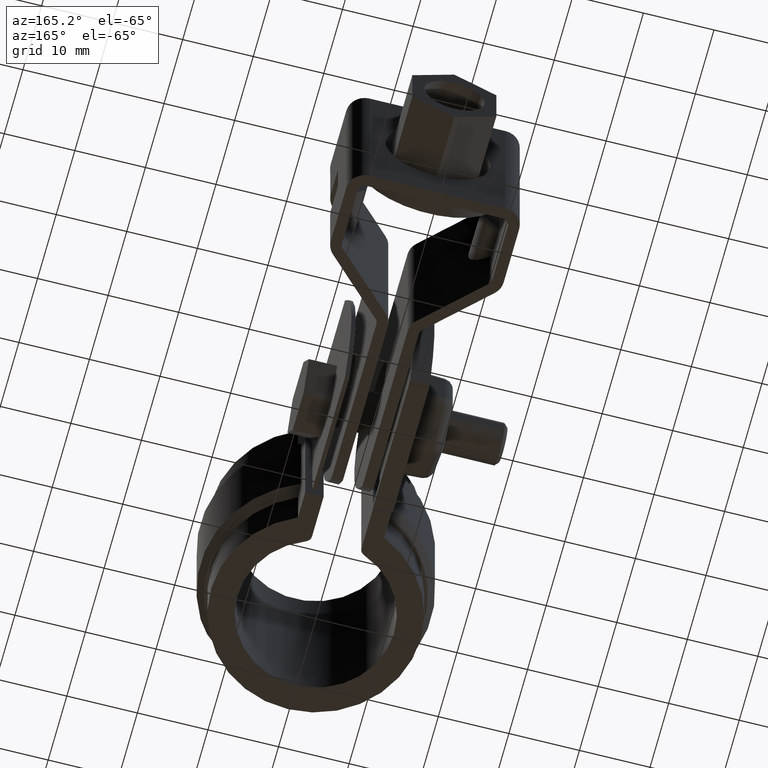
[diagram: clean part render]
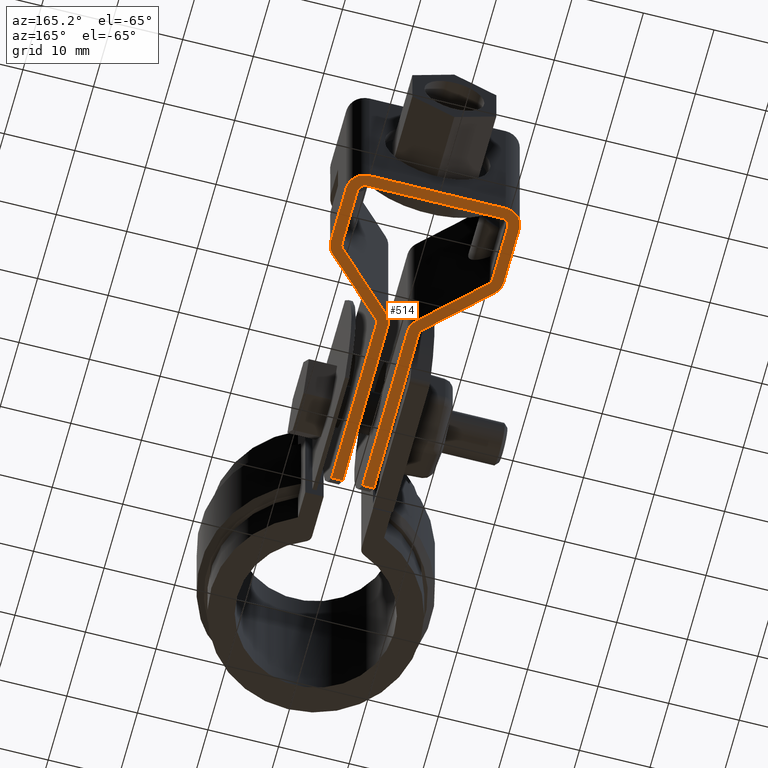
[diagram: same view with one face highlighted and labeled with its STEP entity id]
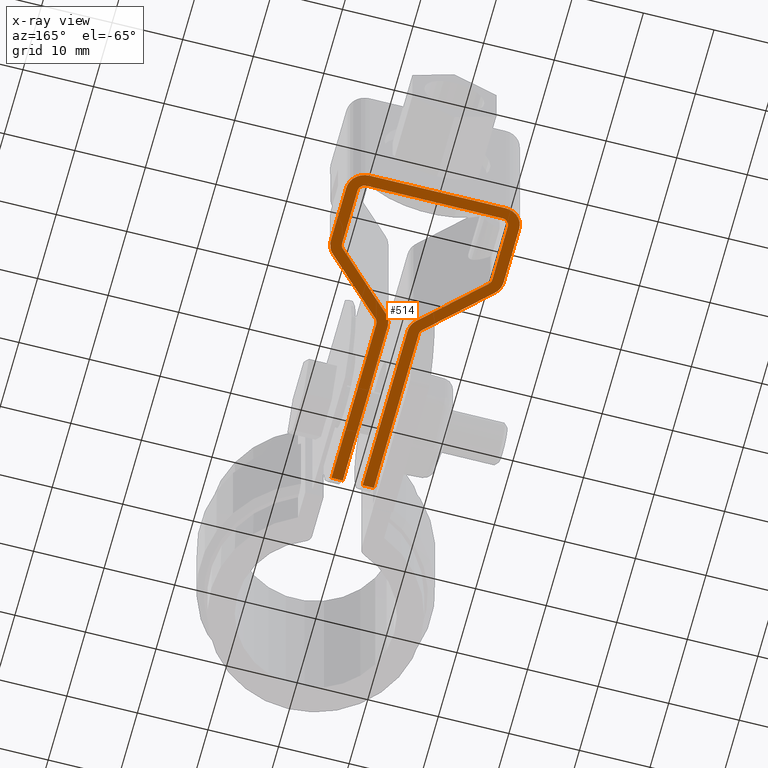
[diagram: x-ray of the same camera — body ghosted, the highlighted face saturated]
A machine part, auxiliary view. The second image highlights one B-rep face of the part: STEP entity #514.
The next image is the same camera in x-ray: the body ghosted, the highlighted face saturated — about 0% of this face is hidden behind the body in this view.
In plain terms, the highlighted planar face has unit normal (0, 0, -1).
Its self-contained STEP definition (entity closure, byte-faithful):
#514 = ADVANCED_FACE( '', ( #1007 ), #1008, .T. );
#1007 = FACE_OUTER_BOUND( '', #2091, .T. );
#1008 = PLANE( '', #2092 );
#2091 = EDGE_LOOP( '', ( #4848, #4849, #4850, #4851, #4852, #4853, #4854, #4855, #4856, #4857, #4858, #4859, #4860, #4861, #4862, #4863, #4864, #4865, #4866, #4867, #4868, #4869, #4870, #4871, #4872, #4873, #4874, #4875 ) );
#2092 = AXIS2_PLACEMENT_3D( '', #4876, #4877, #4878 );
#4848 = ORIENTED_EDGE( '', *, *, #6747, .T. );
#4849 = ORIENTED_EDGE( '', *, *, #6712, .T. );
#4850 = ORIENTED_EDGE( '', *, *, #6721, .F. );
#4851 = ORIENTED_EDGE( '', *, *, #6715, .F. );
#4852 = ORIENTED_EDGE( '', *, *, #6720, .F. );
#4853 = ORIENTED_EDGE( '', *, *, #6709, .T. );
#4854 = ORIENTED_EDGE( '', *, *, #6756, .T. );
#4855 = ORIENTED_EDGE( '', *, *, #6757, .T. );
#4856 = ORIENTED_EDGE( '', *, *, #6758, .T. );
#4857 = ORIENTED_EDGE( '', *, *, #6664, .T. );
#4858 = ORIENTED_EDGE( '', *, *, #6755, .T. );
#4859 = ORIENTED_EDGE( '', *, *, #6707, .F. );
#4860 = ORIENTED_EDGE( '', *, *, #6694, .F. );
#4861 = ORIENTED_EDGE( '', *, *, #6759, .F. );
#4862 = ORIENTED_EDGE( '', *, *, #6760, .F. );
#4863 = ORIENTED_EDGE( '', *, *, #6761, .F. );
#4864 = ORIENTED_EDGE( '', *, *, #6671, .T. );
#4865 = ORIENTED_EDGE( '', *, *, #6667, .T. );
#4866 = ORIENTED_EDGE( '', *, *, #6762, .T. );
#4867 = ORIENTED_EDGE( '', *, *, #6763, .F. );
#4868 = ORIENTED_EDGE( '', *, *, #6700, .F. );
#4869 = ORIENTED_EDGE( '', *, *, #6697, .F. );
#4870 = ORIENTED_EDGE( '', *, *, #6704, .F. );
#4871 = ORIENTED_EDGE( '', *, *, #6705, .F. );
#4872 = ORIENTED_EDGE( '', *, *, #6754, .T. );
#4873 = ORIENTED_EDGE( '', *, *, #6752, .T. );
#4874 = ORIENTED_EDGE( '', *, *, #6749, .T. );
#4875 = ORIENTED_EDGE( '', *, *, #6745, .T. );
#4876 = CARTESIAN_POINT( '', ( -9.64999999980245, 62.6980146721844, -24.9999999871374 ) );
#4877 = DIRECTION( '', ( 7.65540480244708E-013, 9.34504695848679E-011, -1.00000000000000 ) );
#4878 = DIRECTION( '', ( 8.53589041478956E-013, 1.00000000000000, 9.34504695848685E-011 ) );
#6664 = EDGE_CURVE( '', #7830, #7831, #7832, .T. );
#6667 = EDGE_CURVE( '', #7835, #7836, #7837, .T. );
#6671 = EDGE_CURVE( '', #7842, #7835, #7843, .T. );
#6694 = EDGE_CURVE( '', #7879, #7881, #7882, .T. );
#6697 = EDGE_CURVE( '', #7884, #7886, #7887, .T. );
#6700 = EDGE_CURVE( '', #7886, #7890, #7891, .T. );
#6704 = EDGE_CURVE( '', #7894, #7884, #7896, .T. );
#6705 = EDGE_CURVE( '', #7897, #7894, #7898, .T. );
#6707 = EDGE_CURVE( '', #7881, #7900, #7901, .T. );
#6709 = EDGE_CURVE( '', #7903, #7904, #7905, .F. );
#6712 = EDGE_CURVE( '', #7908, #7909, #7910, .T. );
#6715 = EDGE_CURVE( '', #7913, #7914, #7915, .T. );
#6720 = EDGE_CURVE( '', #7903, #7913, #7922, .T. );
#6721 = EDGE_CURVE( '', #7914, #7909, #7923, .T. );
#6745 = EDGE_CURVE( '', #7964, #7962, #7965, .T. );
#6747 = EDGE_CURVE( '', #7962, #7908, #7967, .T. );
#6749 = EDGE_CURVE( '', #7969, #7964, #7970, .T. );
#6752 = EDGE_CURVE( '', #7973, #7969, #7974, .T. );
#6754 = EDGE_CURVE( '', #7897, #7973, #7976, .T. );
#6755 = EDGE_CURVE( '', #7831, #7900, #7977, .T. );
#6756 = EDGE_CURVE( '', #7904, #7978, #7979, .T. );
#6757 = EDGE_CURVE( '', #7978, #7980, #7981, .T. );
#6758 = EDGE_CURVE( '', #7980, #7830, #7982, .T. );
#6759 = EDGE_CURVE( '', #7983, #7879, #7984, .T. );
#6760 = EDGE_CURVE( '', #7985, #7983, #7986, .T. );
#6761 = EDGE_CURVE( '', #7842, #7985, #7987, .F. );
#6762 = EDGE_CURVE( '', #7836, #7988, #7989, .T. );
#6763 = EDGE_CURVE( '', #7890, #7988, #7990, .T. );
#7830 = VERTEX_POINT( '', #10852 );
#7831 = VERTEX_POINT( '', #10853 );
#7832 = CIRCLE( '', #10854, 2.59999999999999 );
#7835 = VERTEX_POINT( '', #10859 );
#7836 = VERTEX_POINT( '', #10860 );
#7837 = LINE( '', #10861, #10862 );
#7842 = VERTEX_POINT( '', #10867 );
#7843 = LINE( '', #10868, #10869 );
#7879 = VERTEX_POINT( '', #10942 );
#7881 = VERTEX_POINT( '', #10945 );
#7882 = LINE( '', #10946, #10947 );
#7884 = VERTEX_POINT( '', #10950 );
#7886 = VERTEX_POINT( '', #10953 );
#7887 = CIRCLE( '', #10954, 0.999999999999999 );
#7890 = VERTEX_POINT( '', #10959 );
#7891 = LINE( '', #10960, #10961 );
#7894 = VERTEX_POINT( '', #10966 );
#7896 = LINE( '', #10969, #10970 );
#7897 = VERTEX_POINT( '', #10971 );
#7898 = CIRCLE( '', #10972, 1.00000000000000 );
#7900 = VERTEX_POINT( '', #10975 );
#7901 = CIRCLE( '', #10976, 2.59999999999999 );
#7903 = VERTEX_POINT( '', #10979 );
#7904 = VERTEX_POINT( '', #10980 );
#7905 = CIRCLE( '', #10981, 1.00000000000000 );
#7908 = VERTEX_POINT( '', #10986 );
#7909 = VERTEX_POINT( '', #10987 );
#7910 = CIRCLE( '', #10988, 2.60000000000000 );
#7913 = VERTEX_POINT( '', #10993 );
#7914 = VERTEX_POINT( '', #10994 );
#7915 = LINE( '', #10995, #10996 );
#7922 = LINE( '', #11003, #11004 );
#7923 = LINE( '', #11005, #11006 );
#7962 = VERTEX_POINT( '', #11081 );
#7964 = VERTEX_POINT( '', #11084 );
#7965 = CIRCLE( '', #11085, 1.00000000000000 );
#7967 = LINE( '', #11088, #11089 );
#7969 = VERTEX_POINT( '', #11092 );
#7970 = LINE( '', #11093, #11094 );
#7973 = VERTEX_POINT( '', #11099 );
#7974 = CIRCLE( '', #11100, 1.00000000000000 );
#7976 = LINE( '', #11103, #11104 );
#7977 = LINE( '', #11105, #11106 );
#7978 = VERTEX_POINT( '', #11107 );
#7979 = LINE( '', #11108, #11109 );
#7980 = VERTEX_POINT( '', #11110 );
#7981 = CIRCLE( '', #11111, 2.59999999999999 );
#7982 = LINE( '', #11112, #11113 );
#7983 = VERTEX_POINT( '', #11114 );
#7984 = CIRCLE( '', #11115, 2.59999999999999 );
#7985 = VERTEX_POINT( '', #11116 );
#7986 = LINE( '', #11117, #11118 );
#7987 = CIRCLE( '', #11119, 0.999999999999998 );
#7988 = VERTEX_POINT( '', #11120 );
#7989 = LINE( '', #11121, #11122 );
#7990 = CIRCLE( '', #11123, 2.59999999999999 );
#10852 = CARTESIAN_POINT( '', ( -12.2499999998024, 62.6980146721866, -24.9999999871394 ) );
#10853 = CARTESIAN_POINT( '', ( -9.64999999980023, 65.2980146721844, -24.9999999868944 ) );
#10854 = AXIS2_PLACEMENT_3D( '', #12747, #12748, #12749 );
#10859 = CARTESIAN_POINT( '', ( 3.00000000016092, 19.7980147052621, -24.9999999911367 ) );
#10860 = CARTESIAN_POINT( '', ( 1.40000000016093, 19.7980147052634, -24.9999999911379 ) );
#10861 = CARTESIAN_POINT( '', ( 38.4737108567568, 19.7980147101232, -24.9999999970227 ) );
#10862 = VECTOR( '', #12752, 999.999999999998 );
#10867 = CARTESIAN_POINT( '', ( 3.00000000018146, 43.8521610766942, -24.9999999888888 ) );
#10868 = CARTESIAN_POINT( '', ( 3.00000000018182, 44.2736248455843, -24.9999999888494 ) );
#10869 = VECTOR( '', #12762, 1000.00000000000 );
#10942 = CARTESIAN_POINT( '', ( 12.2500000001904, 54.3938204712801, -24.9999999878966 ) );
#10945 = CARTESIAN_POINT( '', ( 12.2500000001975, 62.6980146721660, -24.9999999871206 ) );
#10946 = CARTESIAN_POINT( '', ( 12.2500000001904, 54.3938204712801, -24.9999999878966 ) );
#10947 = VECTOR( '', #12793, 1000.00000000000 );
#10950 = CARTESIAN_POINT( '', ( 10.6500000001904, 54.3938204410574, -24.9999999878978 ) );
#10953 = CARTESIAN_POINT( '', ( 10.3483238357203, 53.6780384765392, -24.9999999879649 ) );
#10954 = AXIS2_PLACEMENT_3D( '', #12796, #12797, #12798 );
#10959 = CARTESIAN_POINT( '', ( 2.18435802780375, 45.7131941542189, -24.9999999887155 ) );
#10960 = CARTESIAN_POINT( '', ( 10.3483238357203, 53.6780384765392, -24.9999999879649 ) );
#10961 = VECTOR( '', #12801, 1000.00000000000 );
#10966 = CARTESIAN_POINT( '', ( 10.6500000001975, 62.6980146721674, -24.9999999871218 ) );
#10969 = CARTESIAN_POINT( '', ( 10.6500000001975, 62.6980146721674, -24.9999999871218 ) );
#10970 = VECTOR( '', #12805, 1000.00000000000 );
#10971 = CARTESIAN_POINT( '', ( 9.65000000019839, 63.6980146721682, -24.9999999870291 ) );
#10972 = AXIS2_PLACEMENT_3D( '', #12806, #12807, #12808 );
#10975 = CARTESIAN_POINT( '', ( 9.65000000019976, 65.2980146721682, -24.9999999868796 ) );
#10976 = AXIS2_PLACEMENT_3D( '', #12810, #12811, #12812 );
#10979 = CARTESIAN_POINT( '', ( -2.99999999981853, 43.8521610766990, -24.9999999888934 ) );
#10980 = CARTESIAN_POINT( '', ( -3.30167616428742, 44.5679430412178, -24.9999999888268 ) );
#10981 = AXIS2_PLACEMENT_3D( '', #12814, #12815, #12816 );
#10986 = CARTESIAN_POINT( '', ( -2.18435802743765, 45.7131941542223, -24.9999999887189 ) );
#10987 = CARTESIAN_POINT( '', ( -1.39999999981854, 43.8521610464736, -24.9999999888922 ) );
#10988 = AXIS2_PLACEMENT_3D( '', #12819, #12820, #12821 );
#10993 = CARTESIAN_POINT( '', ( -2.99999999983906, 19.7980147052670, -24.9999999911413 ) );
#10994 = CARTESIAN_POINT( '', ( -1.39999999983907, 19.7980147052656, -24.9999999911401 ) );
#10995 = CARTESIAN_POINT( '', ( -38.4737108564350, 19.7980147101887, -24.9999999970817 ) );
#10996 = VECTOR( '', #12824, 1000.00000000000 );
#11003 = CARTESIAN_POINT( '', ( -2.99999999981817, 44.2736248455891, -24.9999999888541 ) );
#11004 = VECTOR( '', #12837, 1000.00000000000 );
#11005 = CARTESIAN_POINT( '', ( -1.39999999984291, 15.2980146721775, -24.9999999915606 ) );
#11006 = VECTOR( '', #12838, 1000.00000000000 );
#11081 = CARTESIAN_POINT( '', ( -10.3483238353407, 53.6780384765565, -24.9999999879808 ) );
#11084 = CARTESIAN_POINT( '', ( -10.6499999998095, 54.3938204410753, -24.9999999879142 ) );
#11085 = AXIS2_PLACEMENT_3D( '', #12874, #12875, #12876 );
#11088 = CARTESIAN_POINT( '', ( -10.3483238353407, 53.6780384765565, -24.9999999879808 ) );
#11089 = VECTOR( '', #12878, 1000.00000000000 );
#11092 = CARTESIAN_POINT( '', ( -10.6499999998025, 62.6980146721852, -24.9999999871381 ) );
#11093 = CARTESIAN_POINT( '', ( -10.6499999998025, 62.6980146721852, -24.9999999871381 ) );
#11094 = VECTOR( '', #12880, 1000.00000000000 );
#11099 = CARTESIAN_POINT( '', ( -9.64999999980160, 63.6980146721844, -24.9999999870439 ) );
#11100 = AXIS2_PLACEMENT_3D( '', #12883, #12884, #12885 );
#11103 = CARTESIAN_POINT( '', ( 9.65000000019841, 63.6980146721679, -24.9999999870291 ) );
#11104 = VECTOR( '', #12887, 1000.00000000000 );
#11105 = CARTESIAN_POINT( '', ( -9.64999999980023, 65.2980146721844, -24.9999999868944 ) );
#11106 = VECTOR( '', #12888, 1000.00000000000 );
#11107 = CARTESIAN_POINT( '', ( -11.4656419721904, 52.5327873635520, -24.9999999880887 ) );
#11108 = CARTESIAN_POINT( '', ( -3.90167616428693, 45.1533088678079, -24.9999999887725 ) );
#11109 = VECTOR( '', #12889, 1000.00000000000 );
#11110 = CARTESIAN_POINT( '', ( -12.2499999998095, 54.3938204713008, -24.9999999879154 ) );
#11111 = AXIS2_PLACEMENT_3D( '', #12890, #12891, #12892 );
#11112 = CARTESIAN_POINT( '', ( -12.2499999998095, 54.3938204713008, -24.9999999879154 ) );
#11113 = VECTOR( '', #12893, 1000.00000000000 );
#11114 = CARTESIAN_POINT( '', ( 11.4656419725682, 52.5327873635327, -24.9999999880711 ) );
#11115 = AXIS2_PLACEMENT_3D( '', #12894, #12895, #12896 );
#11116 = CARTESIAN_POINT( '', ( 3.30167616465156, 44.5679430412124, -24.9999999888217 ) );
#11117 = CARTESIAN_POINT( '', ( 3.90167616465207, 45.1533088678015, -24.9999999887665 ) );
#11118 = VECTOR( '', #12897, 1000.00000000000 );
#11119 = AXIS2_PLACEMENT_3D( '', #12898, #12899, #12900 );
#11120 = CARTESIAN_POINT( '', ( 1.40000000018147, 43.8521610464715, -24.9999999888900 ) );
#11121 = CARTESIAN_POINT( '', ( 1.40000000015709, 15.2980146721753, -24.9999999915584 ) );
#11122 = VECTOR( '', #12901, 1000.00000000000 );
#11123 = AXIS2_PLACEMENT_3D( '', #12902, #12903, #12904 );
#12747 = CARTESIAN_POINT( '', ( -9.64999999980245, 62.6980146721844, -24.9999999871374 ) );
#12748 = DIRECTION( '', ( 7.65540480244708E-013, 9.34504695848679E-011, -1.00000000000000 ) );
#12749 = DIRECTION( '', ( -1.00000000000000, 8.53589041550496E-013, -7.65540480164940E-013 ) );
#12752 = DIRECTION( '', ( -1.00000000000000, 8.53711502185878E-013, -7.65540480164928E-013 ) );
#12762 = DIRECTION( '', ( -8.53822524416801E-013, -1.00000000000000, -9.34504695848685E-011 ) );
#12793 = DIRECTION( '', ( 8.53711502114338E-013, 1.00000000000000, 9.34504695848685E-011 ) );
#12796 = CARTESIAN_POINT( '', ( 9.65000000019045, 54.3938204410583, -24.9999999878986 ) );
#12797 = DIRECTION( '', ( 7.65540480244708E-013, 9.34504695848679E-011, -1.00000000000000 ) );
#12798 = DIRECTION( '', ( 1.00000000000000, -8.53711502185878E-013, 7.65540480164929E-013 ) );
#12801 = DIRECTION( '', ( -0.715781964519100, -0.698323835529891, -6.58066504214428E-011 ) );
#12805 = DIRECTION( '', ( -8.53711502114338E-013, -1.00000000000000, -9.34504695848685E-011 ) );
#12806 = CARTESIAN_POINT( '', ( 9.65000000019754, 62.6980146721682, -24.9999999871225 ) );
#12807 = DIRECTION( '', ( 7.65540480244708E-013, 9.34504695848679E-011, -1.00000000000000 ) );
#12808 = DIRECTION( '', ( 8.53711502114338E-013, 1.00000000000000, 9.34504695848685E-011 ) );
#12810 = CARTESIAN_POINT( '', ( 9.65000000019754, 62.6980146721682, -24.9999999871225 ) );
#12811 = DIRECTION( '', ( -7.65540480244708E-013, -9.34504695848679E-011, 1.00000000000000 ) );
#12812 = DIRECTION( '', ( 1.00000000000000, -8.53711502185878E-013, 7.65540480164929E-013 ) );
#12814 = CARTESIAN_POINT( '', ( -3.99999999981853, 43.8521610766999, -24.9999999888942 ) );
#12815 = DIRECTION( '', ( 7.65540480244708E-013, 9.34504695848679E-011, -1.00000000000000 ) );
#12816 = DIRECTION( '', ( -1.00000000000000, 8.53589041550496E-013, -7.65540480164940E-013 ) );
#12819 = CARTESIAN_POINT( '', ( -3.99999999981853, 43.8521610464758, -24.9999999888942 ) );
#12820 = DIRECTION( '', ( 7.65540480244708E-013, 9.34504695848679E-011, -1.00000000000000 ) );
#12821 = DIRECTION( '', ( -1.00000000000000, 8.53589041550496E-013, -7.65540480164940E-013 ) );
#12824 = DIRECTION( '', ( 1.00000000000000, -8.53589041550496E-013, 7.65540480164940E-013 ) );
#12837 = DIRECTION( '', ( -8.53478019176493E-013, -1.00000000000000, -9.34504695848685E-011 ) );
#12838 = DIRECTION( '', ( 8.53478019176493E-013, 1.00000000000000, 9.34504695848685E-011 ) );
#12874 = CARTESIAN_POINT( '', ( -9.64999999980954, 54.3938204410744, -24.9999999879134 ) );
#12875 = DIRECTION( '', ( -7.65540480244708E-013, -9.34504695848679E-011, 1.00000000000000 ) );
#12876 = DIRECTION( '', ( -1.00000000000000, 8.53589041550496E-013, -7.65540480164940E-013 ) );
#12878 = DIRECTION( '', ( 0.715781964517909, -0.698323835531112, -6.47107302838209E-011 ) );
#12880 = DIRECTION( '', ( -8.53589041478956E-013, -1.00000000000000, -9.34504695848685E-011 ) );
#12883 = CARTESIAN_POINT( '', ( -9.64999999980245, 62.6980146721844, -24.9999999871374 ) );
#12884 = DIRECTION( '', ( -7.65540480244708E-013, -9.34504695848679E-011, 1.00000000000000 ) );
#12885 = DIRECTION( '', ( 8.53589041478956E-013, 1.00000000000000, 9.34504695848685E-011 ) );
#12887 = DIRECTION( '', ( -1.00000000000000, 8.53589041550496E-013, -7.65540480164940E-013 ) );
#12888 = DIRECTION( '', ( 1.00000000000000, -8.53589041550496E-013, 7.65540480164940E-013 ) );
#12889 = DIRECTION( '', ( -0.715781964517909, 0.698323835531112, 6.47107302838209E-011 ) );
#12890 = CARTESIAN_POINT( '', ( -9.64999999980954, 54.3938204712985, -24.9999999879134 ) );
#12891 = DIRECTION( '', ( 7.65540480244704E-013, 9.34504695848679E-011, -1.00000000000000 ) );
#12892 = DIRECTION( '', ( -0.698323835531113, -0.715781964517908, -6.74247558689965E-011 ) );
#12893 = DIRECTION( '', ( 8.53589041478956E-013, 1.00000000000000, 9.34504695848685E-011 ) );
#12894 = CARTESIAN_POINT( '', ( 9.65000000019045, 54.3938204712824, -24.9999999878986 ) );
#12895 = DIRECTION( '', ( -7.65540480244704E-013, -9.34504695848679E-011, 1.00000000000000 ) );
#12896 = DIRECTION( '', ( 0.698323835529889, -0.715781964519102, -6.63555655402714E-011 ) );
#12897 = DIRECTION( '', ( 0.715781964519100, 0.698323835529891, 6.58066504214428E-011 ) );
#12898 = CARTESIAN_POINT( '', ( 4.00000000018145, 43.8521610766933, -24.9999999888880 ) );
#12899 = DIRECTION( '', ( -7.65540480244708E-013, -9.34504695848679E-011, 1.00000000000000 ) );
#12900 = DIRECTION( '', ( 1.00000000000000, -8.53711502185878E-013, 7.65540480164928E-013 ) );
#12901 = DIRECTION( '', ( 8.53822524416801E-013, 1.00000000000000, 9.34504695848685E-011 ) );
#12902 = CARTESIAN_POINT( '', ( 4.00000000018145, 43.8521610464692, -24.9999999888880 ) );
#12903 = DIRECTION( '', ( -7.65540480244708E-013, -9.34504695848679E-011, 1.00000000000000 ) );
#12904 = DIRECTION( '', ( 1.00000000000000, -8.53711502185878E-013, 7.65540480164928E-013 ) );